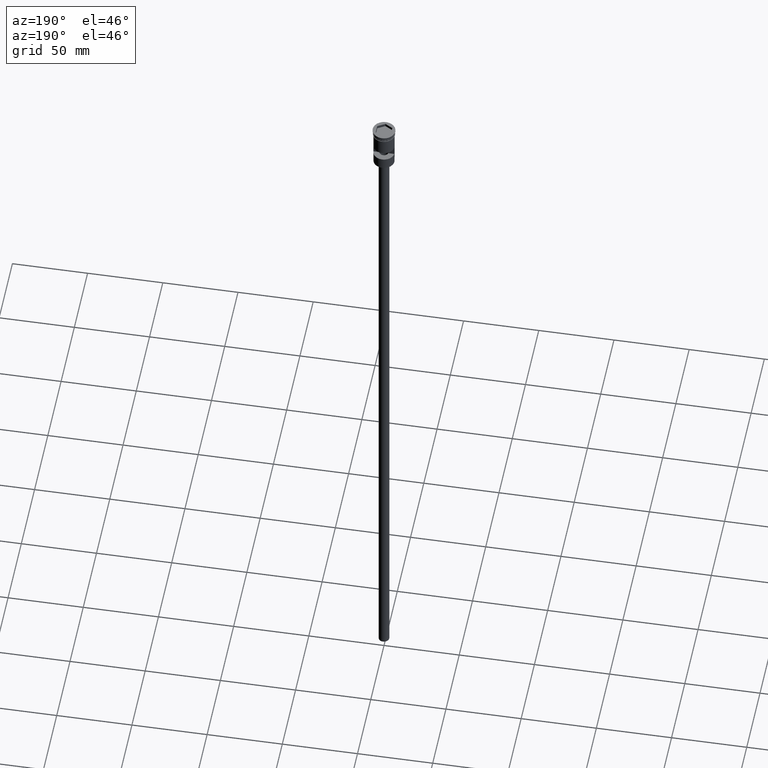
[diagram: clean part render]
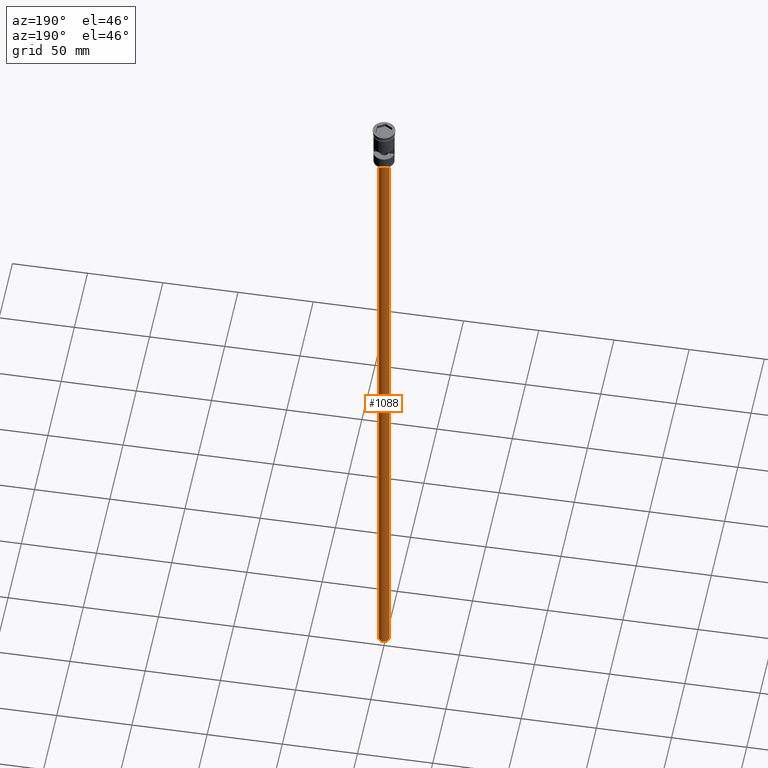
[diagram: same view with one face highlighted and labeled with its STEP entity id]
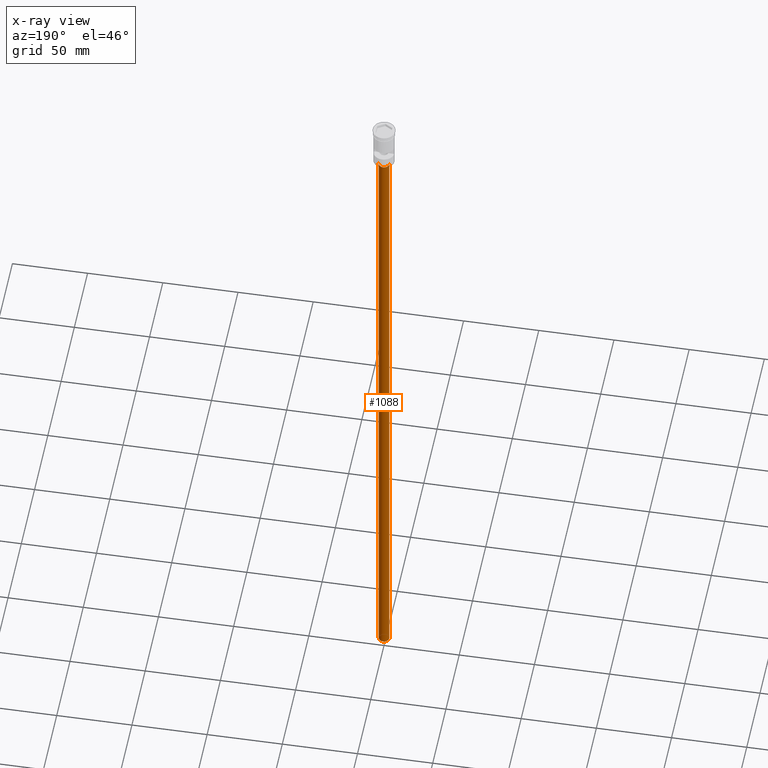
[diagram: x-ray of the same camera — body ghosted, the highlighted face saturated]
A machine part, auxiliary view. The second image highlights one B-rep face of the part: STEP entity #1088.
The next image is the same camera in x-ray: the body ghosted, the highlighted face saturated — about 0% of this face is hidden behind the body in this view.
In plain terms, the highlighted cylindrical surface (edge-blend (fillet) strip) has radius 3.5 mm, axis along (-0, -0, 1).
Its self-contained STEP definition (entity closure, byte-faithful):
#89 = DIRECTION ( 'NONE',  ( 1.000000000000000000, 0.000000000000000000, 0.000000000000000000 ) ) ;
#95 = CARTESIAN_POINT ( 'NONE',  ( -3.500000000000000444, 4.286263797015737088E-16, -31.50000000000000000 ) ) ;
#106 = VECTOR ( 'NONE', #429, 1000.000000000000000 ) ;
#124 = ORIENTED_EDGE ( 'NONE', *, *, #1000, .F. ) ;
#132 = CARTESIAN_POINT ( 'NONE',  ( 3.500000000000000444, 0.000000000000000000, -478.5000000000000568 ) ) ;
#137 = ORIENTED_EDGE ( 'NONE', *, *, #1554, .T. ) ;
#142 = CARTESIAN_POINT ( 'NONE',  ( -3.500000000000000444, 4.286263797015737088E-16, -478.5000000000000568 ) ) ;
#297 = CARTESIAN_POINT ( 'NONE',  ( 0.000000000000000000, 0.000000000000000000, -478.5000000000000568 ) ) ;
#350 = ORIENTED_EDGE ( 'NONE', *, *, #589, .T. ) ;
#428 = VERTEX_POINT ( 'NONE', #132 ) ;
#429 = DIRECTION ( 'NONE',  ( -0.000000000000000000, -0.000000000000000000, 1.000000000000000000 ) ) ;
#535 = CARTESIAN_POINT ( 'NONE',  ( 3.500000000000000444, 0.000000000000000000, -31.50000000000000000 ) ) ;
#560 = LINE ( 'NONE', #937, #106 ) ;
#589 = EDGE_CURVE ( 'NONE', #608, #1026, #757, .T. ) ;
#608 = VERTEX_POINT ( 'NONE', #95 ) ;
#752 = CIRCLE ( 'NONE', #1358, 3.500000000000000444 ) ;
#757 = CIRCLE ( 'NONE', #1483, 3.500000000000000444 ) ;
#778 = AXIS2_PLACEMENT_3D ( 'NONE', #834, #1205, #89 ) ;
#806 = ORIENTED_EDGE ( 'NONE', *, *, #1044, .F. ) ;
#830 = VECTOR ( 'NONE', #1473, 1000.000000000000000 ) ;
#834 = CARTESIAN_POINT ( 'NONE',  ( 0.000000000000000000, 0.000000000000000000, -478.5000000000000568 ) ) ;
#844 = CARTESIAN_POINT ( 'NONE',  ( 0.000000000000000000, 0.000000000000000000, -31.50000000000000000 ) ) ;
#902 = VERTEX_POINT ( 'NONE', #1286 ) ;
#937 = CARTESIAN_POINT ( 'NONE',  ( 3.500000000000000444, 0.000000000000000000, -478.5000000000000568 ) ) ;
#938 = DIRECTION ( 'NONE',  ( -1.000000000000000000, 0.000000000000000000, 0.000000000000000000 ) ) ;
#945 = DIRECTION ( 'NONE',  ( 0.000000000000000000, 0.000000000000000000, -1.000000000000000000 ) ) ;
#1000 = EDGE_CURVE ( 'NONE', #428, #1026, #560, .T. ) ;
#1026 = VERTEX_POINT ( 'NONE', #535 ) ;
#1044 = EDGE_CURVE ( 'NONE', #902, #428, #752, .T. ) ;
#1056 = DIRECTION ( 'NONE',  ( -1.000000000000000000, 0.000000000000000000, 0.000000000000000000 ) ) ;
#1084 = FACE_OUTER_BOUND ( 'NONE', #1262, .T. ) ;
#1088 = ADVANCED_FACE ( 'NONE', ( #1084 ), #1602, .T. ) ;
#1156 = DIRECTION ( 'NONE',  ( 0.000000000000000000, 0.000000000000000000, -1.000000000000000000 ) ) ;
#1205 = DIRECTION ( 'NONE',  ( -0.000000000000000000, -0.000000000000000000, 1.000000000000000000 ) ) ;
#1213 = LINE ( 'NONE', #142, #830 ) ;
#1262 = EDGE_LOOP ( 'NONE', ( #806, #137, #350, #124 ) ) ;
#1286 = CARTESIAN_POINT ( 'NONE',  ( -3.500000000000000444, 4.286263797015737088E-16, -478.5000000000000568 ) ) ;
#1358 = AXIS2_PLACEMENT_3D ( 'NONE', #297, #1156, #1056 ) ;
#1473 = DIRECTION ( 'NONE',  ( -0.000000000000000000, -0.000000000000000000, 1.000000000000000000 ) ) ;
#1483 = AXIS2_PLACEMENT_3D ( 'NONE', #844, #945, #938 ) ;
#1554 = EDGE_CURVE ( 'NONE', #902, #608, #1213, .T. ) ;
#1602 = CYLINDRICAL_SURFACE ( 'NONE', #778, 3.500000000000000444 ) ;